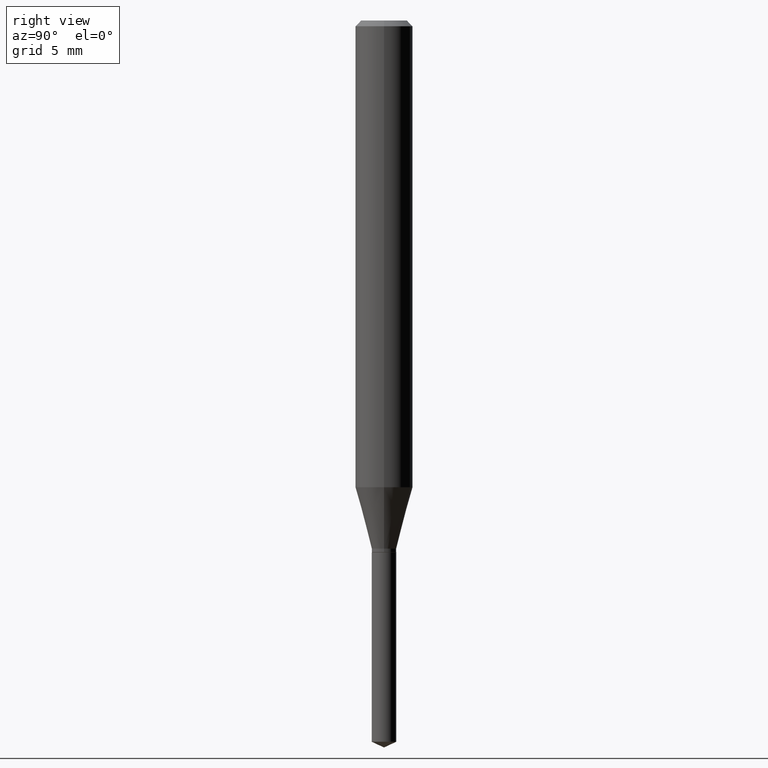
[diagram: clean part render]
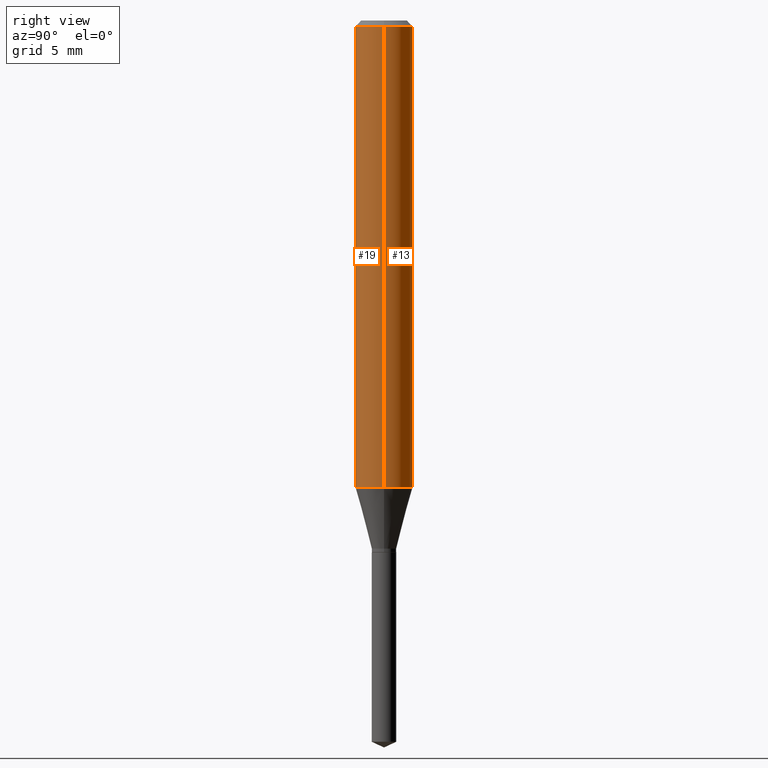
[diagram: same view with one multi-face feature highlighted, each face labeled with its STEP entity id]
A machine part, right view. The highlighted faces form ONE feature: a constant-radius fillet chain: 2 tangent blend faces with common blend radius 1.4999 mm. The faces share edges in the B-rep.
Their STEP definitions:
[1] entity #19 (Cylinder):
#11 = CARTESIAN_POINT ( 'NONE',  ( -0.05905000000000006077, 4.195754854663395916E-16, -2.904631170795524694E-30 ) ) ;
#17 = LINE ( 'NONE', #95, #373 ) ;
#19 = ADVANCED_FACE ( 'NONE', ( #314 ), #285, .T. ) ;
#23 = DIRECTION ( 'NONE',  ( -2.445468806185136597E-29, 3.491481338843145583E-15, 1.000000000000000000 ) ) ;
#29 = CARTESIAN_POINT ( 'NONE',  ( 2.888098660104665518E-31, -4.123439461173782112E-17, -0.01181000000000007738 ) ) ;
#47 = DIRECTION ( 'NONE',  ( -2.445468806185136877E-29, 3.491481338843145188E-15, 1.000000000000000000 ) ) ;
#53 = DIRECTION ( 'NONE',  ( 1.000000000000000000, -6.982962677686266711E-15, 4.876176775795935793E-29 ) ) ;
#56 = EDGE_CURVE ( 'NONE', #69, #127, #463, .T. ) ;
#57 = DIRECTION ( 'NONE',  ( -2.445468806185136877E-29, 3.491481338843145188E-15, 1.000000000000000000 ) ) ;
#59 = DIRECTION ( 'NONE',  ( 1.000000000000000000, -6.982962677686266711E-15, 0.000000000000000000 ) ) ;
#69 = VERTEX_POINT ( 'NONE', #218 ) ;
#88 = ORIENTED_EDGE ( 'NONE', *, *, #56, .F. ) ;
#89 = LINE ( 'NONE', #11, #272 ) ;
#95 = CARTESIAN_POINT ( 'NONE',  ( 0.05905000000000006077, -4.123439461173744764E-16, 2.879382386107503023E-30 ) ) ;
#107 = AXIS2_PLACEMENT_3D ( 'NONE', #465, #282, #53 ) ;
#108 = EDGE_LOOP ( 'NONE', ( #147, #172, #110, #88 ) ) ;
#110 = ORIENTED_EDGE ( 'NONE', *, *, #199, .T. ) ;
#127 = VERTEX_POINT ( 'NONE', #295 ) ;
#147 = ORIENTED_EDGE ( 'NONE', *, *, #408, .F. ) ;
#163 = EDGE_CURVE ( 'NONE', #278, #449, #279, .T. ) ;
#172 = ORIENTED_EDGE ( 'NONE', *, *, #163, .T. ) ;
#199 = EDGE_CURVE ( 'NONE', #449, #127, #17, .T. ) ;
#211 = CARTESIAN_POINT ( 'NONE',  ( 2.349044167195312486E-29, -3.353812509542948489E-15, -0.9605700801637931940 ) ) ;
#212 = AXIS2_PLACEMENT_3D ( 'NONE', #211, #325, #404 ) ;
#218 = CARTESIAN_POINT ( 'NONE',  ( -0.05904999999999999832, -1.277947966611002630E-15, -0.01181000000000007738 ) ) ;
#272 = VECTOR ( 'NONE', #47, 39.37007874015748143 ) ;
#276 = CARTESIAN_POINT ( 'NONE',  ( 0.05905000000000013016, -3.766156455660323409E-15, -0.9605700801637931940 ) ) ;
#278 = VERTEX_POINT ( 'NONE', #454 ) ;
#279 = CIRCLE ( 'NONE', #212, 0.05905000000000011628 ) ;
#282 = DIRECTION ( 'NONE',  ( -2.445468806185136597E-29, 3.491481338843145583E-15, 1.000000000000000000 ) ) ;
#285 = CYLINDRICAL_SURFACE ( 'NONE', #107, 0.05905000000000006077 ) ;
#295 = CARTESIAN_POINT ( 'NONE',  ( 0.05904999999999999832, -4.535783407291118600E-16, -0.01181000000000007738 ) ) ;
#314 = FACE_OUTER_BOUND ( 'NONE', #108, .T. ) ;
#325 = DIRECTION ( 'NONE',  ( -2.445468806185136597E-29, 3.491481338843145583E-15, 1.000000000000000000 ) ) ;
#373 = VECTOR ( 'NONE', #57, 39.37007874015748143 ) ;
#400 = AXIS2_PLACEMENT_3D ( 'NONE', #29, #23, #59 ) ;
#404 = DIRECTION ( 'NONE',  ( 1.000000000000000000, -6.982962677686266711E-15, 0.000000000000000000 ) ) ;
#408 = EDGE_CURVE ( 'NONE', #278, #69, #89, .T. ) ;
#449 = VERTEX_POINT ( 'NONE', #276 ) ;
#454 = CARTESIAN_POINT ( 'NONE',  ( -0.05905000000000013016, -2.934237024076608207E-15, -0.9605700801637931940 ) ) ;
#463 = CIRCLE ( 'NONE', #400, 0.05904999999999999832 ) ;
#465 = CARTESIAN_POINT ( 'NONE',  ( 0.000000000000000000, 0.000000000000000000, 0.000000000000000000 ) ) ;
[2] entity #13 (Cylinder):
#10 = FACE_OUTER_BOUND ( 'NONE', #44, .T. ) ;
#11 = CARTESIAN_POINT ( 'NONE',  ( -0.05905000000000006077, 4.195754854663395916E-16, -2.904631170795524694E-30 ) ) ;
#13 = ADVANCED_FACE ( 'NONE', ( #10 ), #428, .T. ) ;
#17 = LINE ( 'NONE', #95, #373 ) ;
#32 = DIRECTION ( 'NONE',  ( -2.445468806185136597E-29, 3.491481338843145583E-15, 1.000000000000000000 ) ) ;
#44 = EDGE_LOOP ( 'NONE', ( #416, #455, #224, #485 ) ) ;
#45 = AXIS2_PLACEMENT_3D ( 'NONE', #387, #120, #277 ) ;
#47 = DIRECTION ( 'NONE',  ( -2.445468806185136877E-29, 3.491481338843145188E-15, 1.000000000000000000 ) ) ;
#57 = DIRECTION ( 'NONE',  ( -2.445468806185136877E-29, 3.491481338843145188E-15, 1.000000000000000000 ) ) ;
#69 = VERTEX_POINT ( 'NONE', #218 ) ;
#89 = LINE ( 'NONE', #11, #272 ) ;
#95 = CARTESIAN_POINT ( 'NONE',  ( 0.05905000000000006077, -4.123439461173744764E-16, 2.879382386107503023E-30 ) ) ;
#100 = CIRCLE ( 'NONE', #464, 0.05904999999999999832 ) ;
#111 = DIRECTION ( 'NONE',  ( 1.000000000000000000, -6.982962677686266711E-15, 0.000000000000000000 ) ) ;
#120 = DIRECTION ( 'NONE',  ( -2.445468806185136597E-29, 3.491481338843145583E-15, 1.000000000000000000 ) ) ;
#127 = VERTEX_POINT ( 'NONE', #295 ) ;
#134 = AXIS2_PLACEMENT_3D ( 'NONE', #268, #32, #111 ) ;
#199 = EDGE_CURVE ( 'NONE', #449, #127, #17, .T. ) ;
#218 = CARTESIAN_POINT ( 'NONE',  ( -0.05904999999999999832, -1.277947966611002630E-15, -0.01181000000000007738 ) ) ;
#224 = ORIENTED_EDGE ( 'NONE', *, *, #254, .F. ) ;
#254 = EDGE_CURVE ( 'NONE', #127, #69, #100, .T. ) ;
#268 = CARTESIAN_POINT ( 'NONE',  ( 2.349044167195312486E-29, -3.353812509542948489E-15, -0.9605700801637931940 ) ) ;
#272 = VECTOR ( 'NONE', #47, 39.37007874015748143 ) ;
#275 = EDGE_CURVE ( 'NONE', #449, #278, #443, .T. ) ;
#276 = CARTESIAN_POINT ( 'NONE',  ( 0.05905000000000013016, -3.766156455660323409E-15, -0.9605700801637931940 ) ) ;
#277 = DIRECTION ( 'NONE',  ( 1.000000000000000000, -6.982962677686266711E-15, 4.876176775795935793E-29 ) ) ;
#278 = VERTEX_POINT ( 'NONE', #454 ) ;
#295 = CARTESIAN_POINT ( 'NONE',  ( 0.05904999999999999832, -4.535783407291118600E-16, -0.01181000000000007738 ) ) ;
#369 = DIRECTION ( 'NONE',  ( -2.445468806185136597E-29, 3.491481338843145583E-15, 1.000000000000000000 ) ) ;
#373 = VECTOR ( 'NONE', #57, 39.37007874015748143 ) ;
#387 = CARTESIAN_POINT ( 'NONE',  ( 0.000000000000000000, 0.000000000000000000, 0.000000000000000000 ) ) ;
#408 = EDGE_CURVE ( 'NONE', #278, #69, #89, .T. ) ;
#411 = CARTESIAN_POINT ( 'NONE',  ( 2.888098660104665518E-31, -4.123439461173782112E-17, -0.01181000000000007738 ) ) ;
#415 = DIRECTION ( 'NONE',  ( 1.000000000000000000, -6.982962677686266711E-15, 0.000000000000000000 ) ) ;
#416 = ORIENTED_EDGE ( 'NONE', *, *, #275, .T. ) ;
#428 = CYLINDRICAL_SURFACE ( 'NONE', #45, 0.05905000000000006077 ) ;
#443 = CIRCLE ( 'NONE', #134, 0.05905000000000011628 ) ;
#449 = VERTEX_POINT ( 'NONE', #276 ) ;
#454 = CARTESIAN_POINT ( 'NONE',  ( -0.05905000000000013016, -2.934237024076608207E-15, -0.9605700801637931940 ) ) ;
#455 = ORIENTED_EDGE ( 'NONE', *, *, #408, .T. ) ;
#464 = AXIS2_PLACEMENT_3D ( 'NONE', #411, #369, #415 ) ;
#485 = ORIENTED_EDGE ( 'NONE', *, *, #199, .F. ) ;